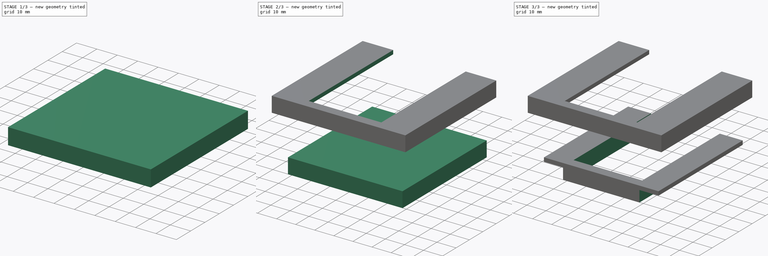
[diagram: build sequence overview — one tinted view per stage of 3, left to right]
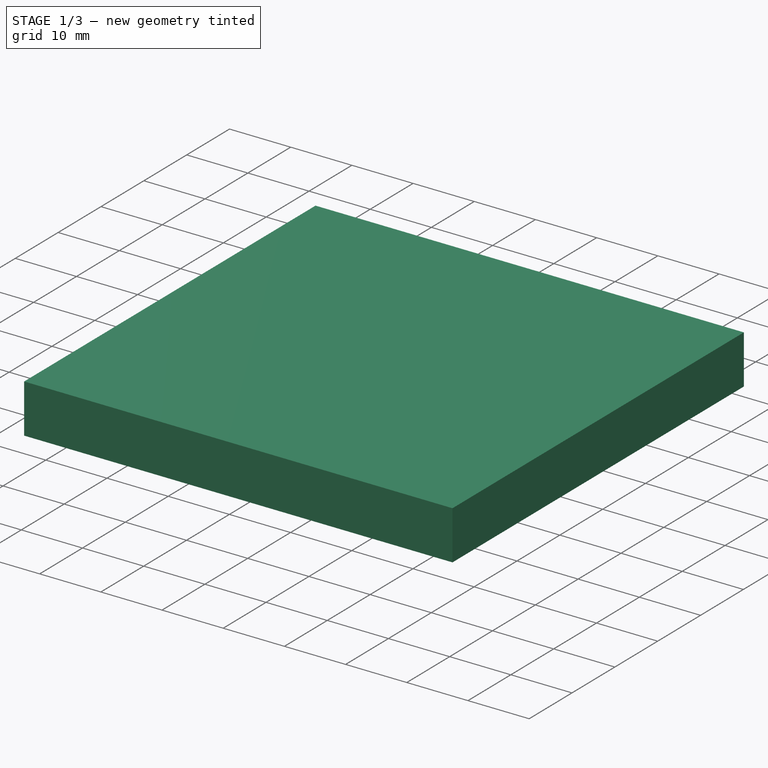
[diagram: stage 1 of 3 — iso view after this stage's code; geometry added in this stage tinted green]
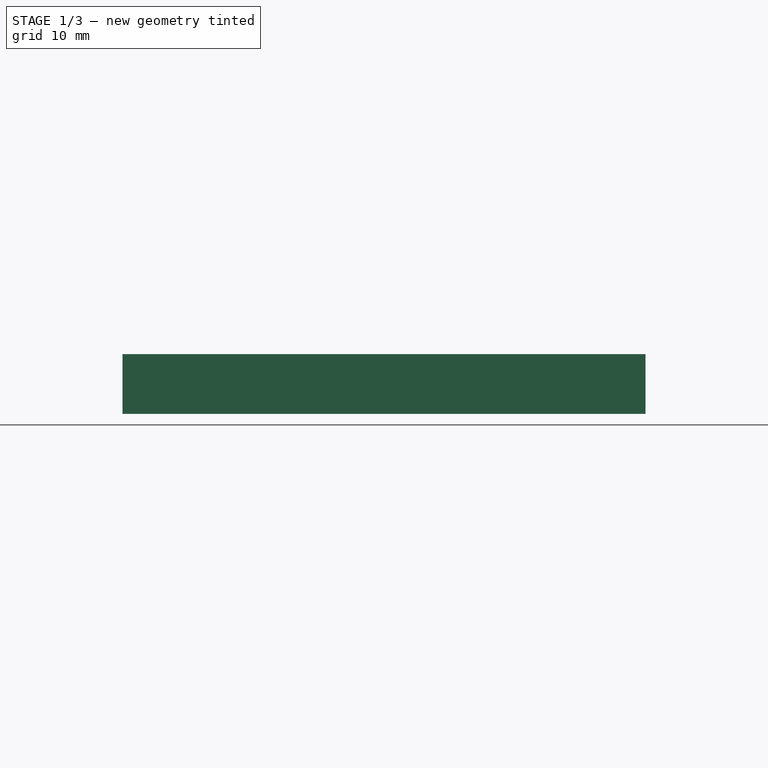
[diagram: stage 1 of 3 — front view after this stage's code; geometry added in this stage tinted green]
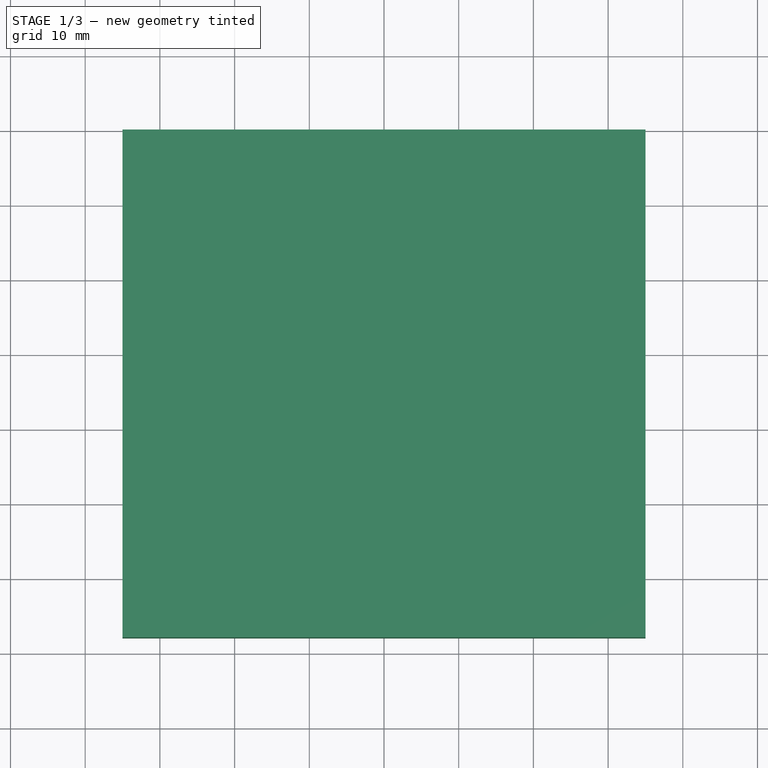
[diagram: stage 1 of 3 — top view after this stage's code; geometry added in this stage tinted green]
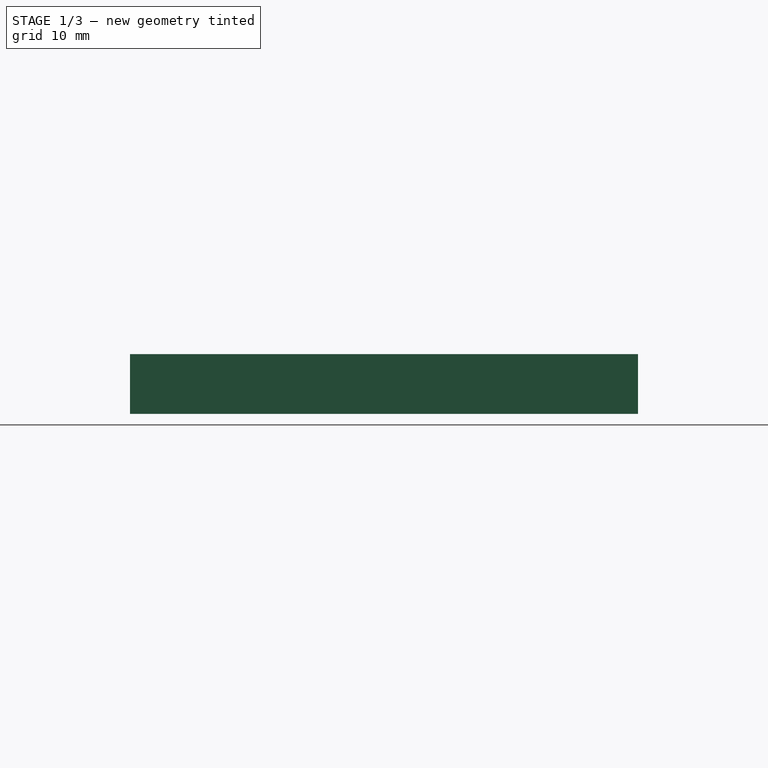
[diagram: stage 1 of 3 — right view after this stage's code; geometry added in this stage tinted green]
FCSTD DOCUMENT  (FreeCAD 0.20R29177 (Git))
Label: Top01
License: All rights reserved
LicenseURL: http://en.wikipedia.org/wiki/All_rights_reserved
objects: Sketcher::SketchObject×6, PartDesign::Pocket×4, PartDesign::Pad×2, PartDesign::Body×2
note: 20 computed .brp shape members not serialized (recipe doc carries the construction recipe); baked Part::Feature solids carry a one-line shape summary decoded from their .brp

FEATURE [PartDesign::Body] Body  label="Below"
  Group = -> [Sketch,Pad,Sketch001,Pocket,Pocket001]
  Origin = -> Origin
  Tip = -> Pocket001
FEATURE [Sketcher::SketchObject] Sketch002  label="MainCover001"
  AttachmentOffset = pos=(0,0,20) rot=(0,0,1;0rad)
  FullyConstrained = false
  MapMode = 5
  Placement = pos=(0,0,20) rot=(0,0,1;0rad)
  Support = -> [XY_Plane001]
  sketch-geometry (4):
    g0: LineSegment StartX=-35 StartY=40.0942 StartZ=0 EndX=35 EndY=40.0942 EndZ=0
    g1: LineSegment StartX=35 StartY=40.0942 StartZ=0 EndX=35 EndY=-27.9058 EndZ=0
    g2: LineSegment StartX=35 StartY=-27.9058 StartZ=0 EndX=-35 EndY=-27.9058 EndZ=0
    g3: LineSegment StartX=-35 StartY=-27.9058 StartZ=0 EndX=-35 EndY=40.0942 EndZ=0
  constraints (10):
    c: Coincident(g0,g1)
    c: Coincident(g1,g2)
    c: Coincident(g2,g3)
    c: Coincident(g3,g0)
    c: Horizontal(g2)
    c: Vertical(g1)
    c: Vertical(g3)
    c: Symmetric(g0,g0,g-2)
    c: DistanceX(g2,g2) = 70
    c: DistanceY(g1,g1) = 68
FEATURE [PartDesign::Pad] Pad001  label="MainCover"
  AllowMultiFace = false
  Direction = (1,1,1)
  Length = 8
  Length2 = 100
  Profile = -> Sketch002
  Type = 0
FEATURE [Sketcher::SketchObject] Sketch003  label="CoverFirst001"
  ExternalGeometry = -> [Pad001]
  FullyConstrained = false
  MapMode = 5
  Placement = pos=(0,0,20) rot=(1,0,0;3.14159rad)
  Support = -> [Pad001]
  sketch-geometry (4):
    g0: LineSegment StartX=-30.075 StartY=23.0558 StartZ=0 EndX=30.075 EndY=23.0558 EndZ=0
    g1: LineSegment StartX=30.075 StartY=23.0558 StartZ=0 EndX=30.075 EndY=-40.0942 EndZ=0
    g2: LineSegment StartX=30.075 StartY=-40.0942 StartZ=0 EndX=-30.075 EndY=-40.0942 EndZ=0
    g3: LineSegment StartX=-30.075 StartY=-40.0942 StartZ=0 EndX=-30.075 EndY=23.0558 EndZ=0
  constraints (11):
    c: Coincident(g0,g1)
    c: Coincident(g1,g2)
    c: Coincident(g2,g3)
    c: Coincident(g3,g0)
    c: Horizontal(g2)
    c: Vertical(g1)
    c: Vertical(g3)
    c: Symmetric(g0,g0,g-2)
    c: DistanceX(g0,g0) = 60.15
    c: PointOnObject(g2,g-3)
    c: DistanceY(g3,g3) = 63.15
FEATURE [PartDesign::Pocket] Pocket002  label="CoverFirst"
  AllowMultiFace = false
  BaseFeature = -> Pad001
  Direction = (1,1,1)
  Length = 6
  Length2 = 100
  Profile = -> Sketch003
  Type = 0
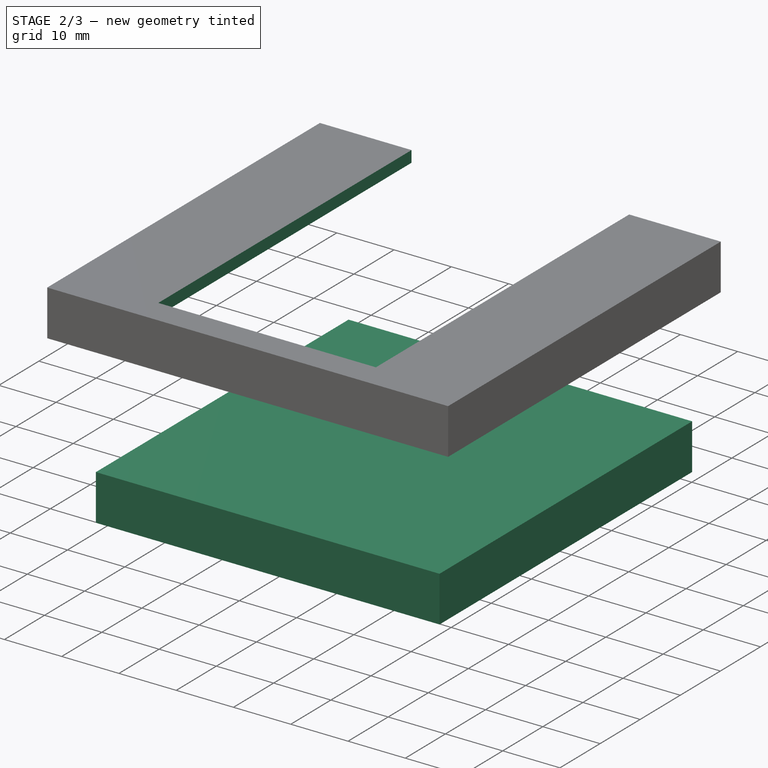
[diagram: stage 2 of 3 — iso view after this stage's code; geometry added in this stage tinted green]
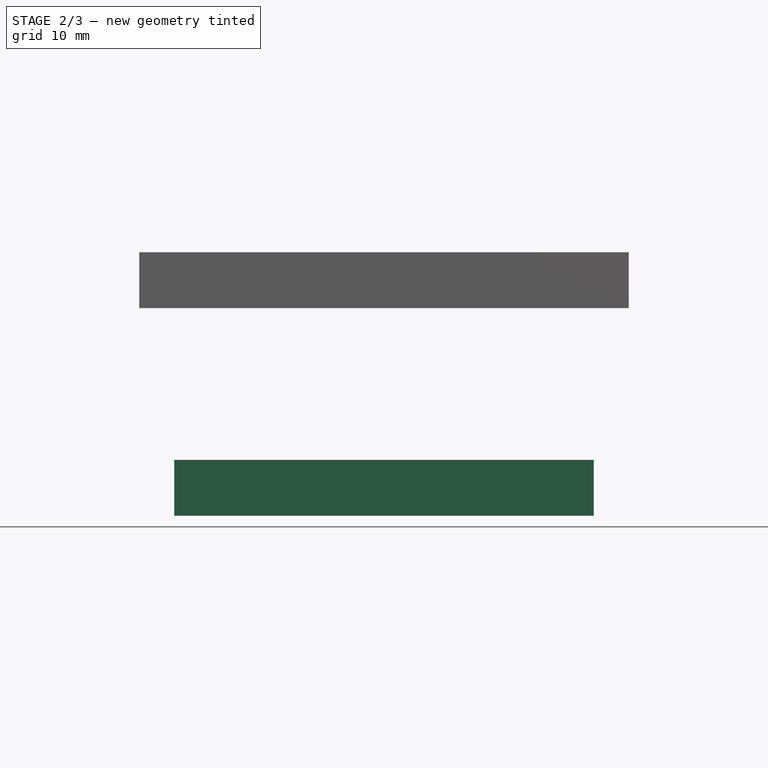
[diagram: stage 2 of 3 — front view after this stage's code; geometry added in this stage tinted green]
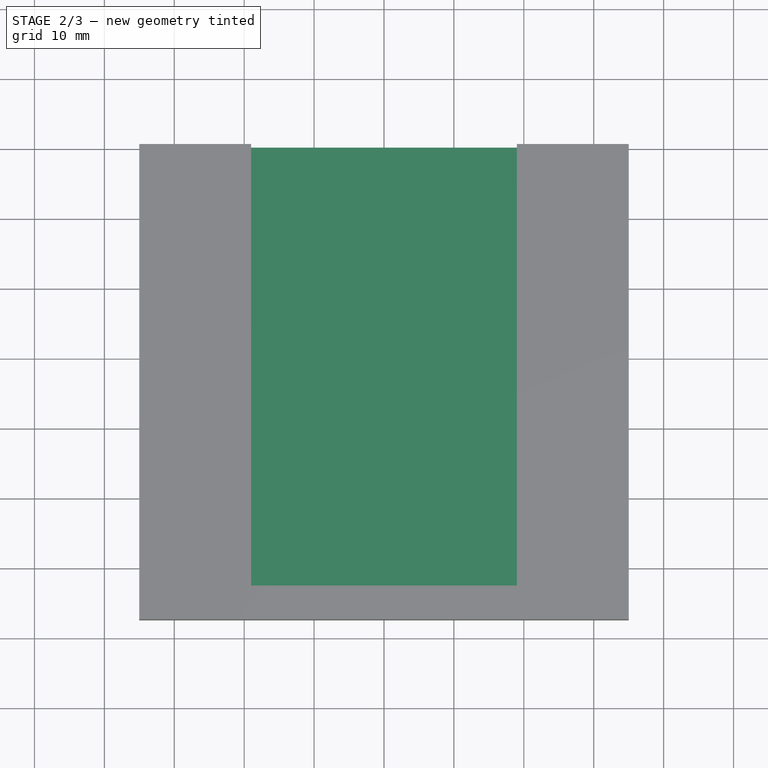
[diagram: stage 2 of 3 — top view after this stage's code; geometry added in this stage tinted green]
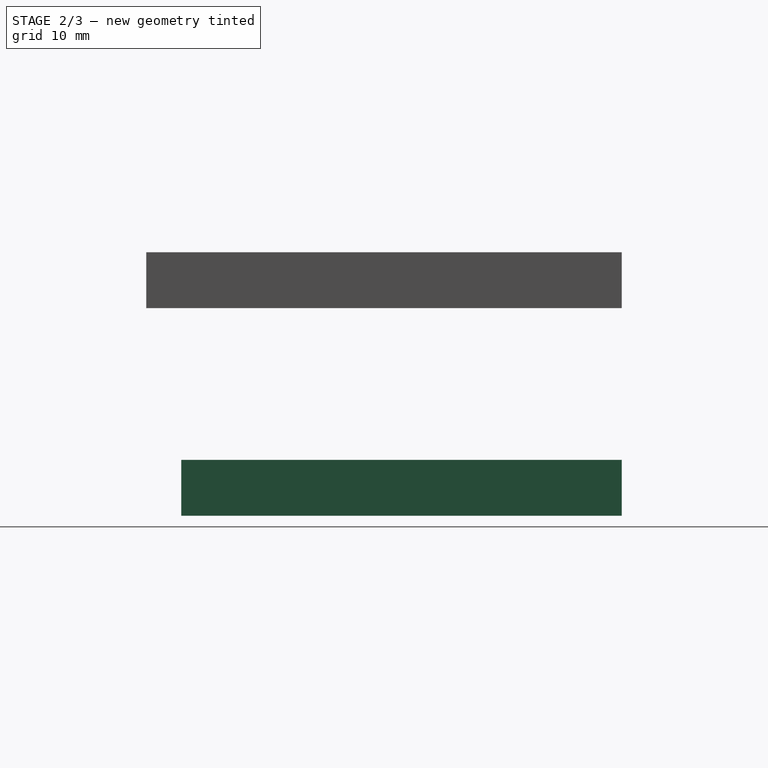
[diagram: stage 2 of 3 — right view after this stage's code; geometry added in this stage tinted green]
FEATURE [Sketcher::SketchObject] Sketch  label="Main001"
  FullyConstrained = false
  MapMode = 7
  Placement = pos=(-4e-15,-22.9058,-6.16703) rot=(0,0.707107,0.707107;3.14159rad)
  sketch-geometry (4):
    g0: LineSegment StartX=-30 StartY=4.46571 StartZ=0 EndX=30 EndY=4.46571 EndZ=0
    g1: LineSegment StartX=30 StartY=4.46571 StartZ=0 EndX=30 EndY=-3.53429 EndZ=0
    g2: LineSegment StartX=30 StartY=-3.53429 StartZ=0 EndX=-30 EndY=-3.53429 EndZ=0
    g3: LineSegment StartX=-30 StartY=-3.53429 StartZ=0 EndX=-30 EndY=4.46571 EndZ=0
  constraints (10):
    c: Coincident(g0,g1)
    c: Coincident(g1,g2)
    c: Coincident(g2,g3)
    c: Coincident(g3,g0)
    c: Horizontal(g2)
    c: Vertical(g1)
    c: Vertical(g3)
    c: DistanceX(g0,g0) = 60
    c: DistanceY(g1,g1) = 8
    c: Symmetric(g0,g0,g-2)
FEATURE [PartDesign::Pad] Pad  label="Main"
  AllowMultiFace = false
  Direction = (1,1,1)
  Length = 63
  Length2 = 100
  Placement = pos=(-4e-15,-22.9058,-6.16703) rot=(0,0.707107,0.707107;3.14159rad)
  Profile = -> Sketch
  Type = 0
FEATURE [Sketcher::SketchObject] Sketch004  label="Hole001"
  ExternalGeometry = -> [Pocket002]
  FullyConstrained = false
  MapMode = 5
  Placement = pos=(0,0,26) rot=(1,0,0;3.14159rad)
  Support = -> [Pocket002]
  sketch-geometry (4):
    g0: LineSegment StartX=-19 StartY=23.0558 StartZ=0 EndX=19 EndY=23.0558 EndZ=0
    g1: LineSegment StartX=19 StartY=23.0558 StartZ=0 EndX=19 EndY=-40.0942 EndZ=0
    g2: LineSegment StartX=19 StartY=-40.0942 StartZ=0 EndX=-19 EndY=-40.0942 EndZ=0
    g3: LineSegment StartX=-19 StartY=-40.0942 StartZ=0 EndX=-19 EndY=23.0558 EndZ=0
  constraints (11):
    c: Coincident(g0,g1)
    c: Coincident(g1,g2)
    c: Coincident(g2,g3)
    c: Coincident(g3,g0)
    c: Horizontal(g2)
    c: Vertical(g1)
    c: Vertical(g3)
    c: Symmetric(g0,g0,g-2)
    c: DistanceX(g0,g0) = 38
    c: PointOnObject(g2,g-3)
    c: DistanceY(g3,g3) = 63.15
FEATURE [PartDesign::Pocket] Pocket003  label="Hole"
  AllowMultiFace = false
  BaseFeature = -> Pocket002
  Direction = (1,1,1)
  Length = 5
  Length2 = 100
  Profile = -> Sketch004
  Type = 1
FEATURE [PartDesign::Body] Body001  label="Cover"
  Group = -> [Sketch002,Pad001,Sketch003,Pocket002,Sketch004,Pocket003]
  Origin = -> Origin001
  Tip = -> Pocket003
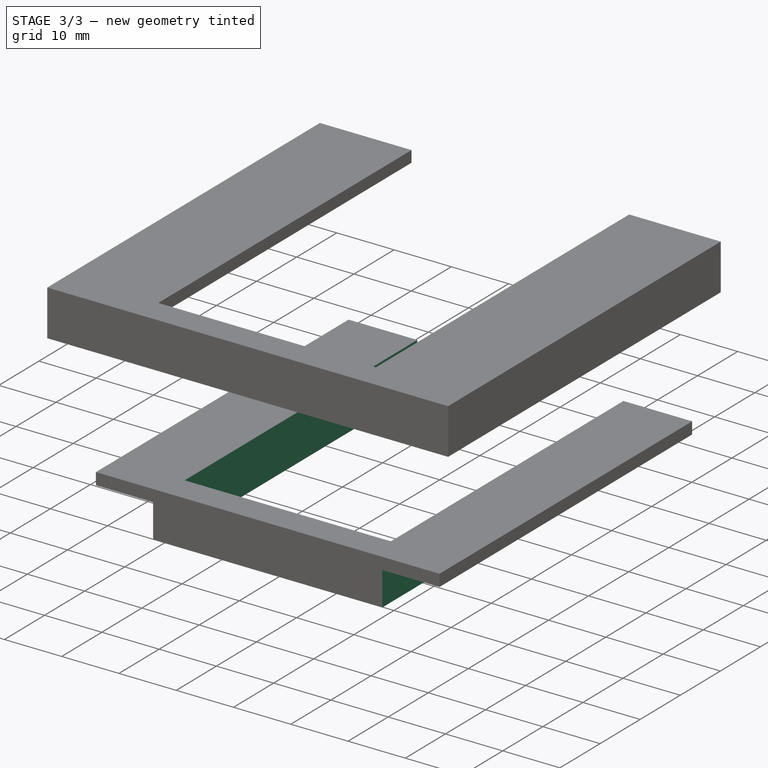
[diagram: stage 3 of 3 — iso view after this stage's code; geometry added in this stage tinted green]
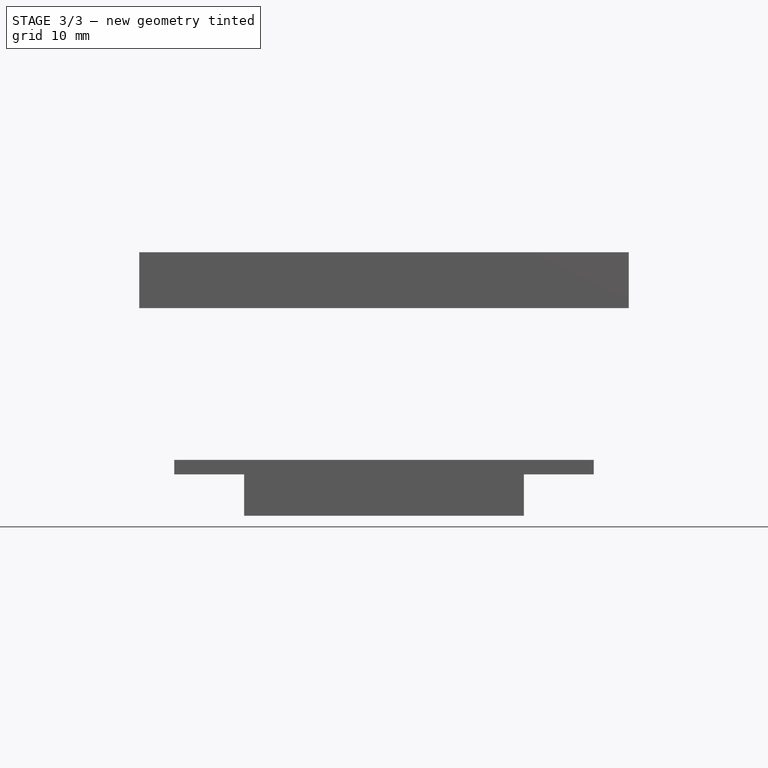
[diagram: stage 3 of 3 — front view after this stage's code; geometry added in this stage tinted green]
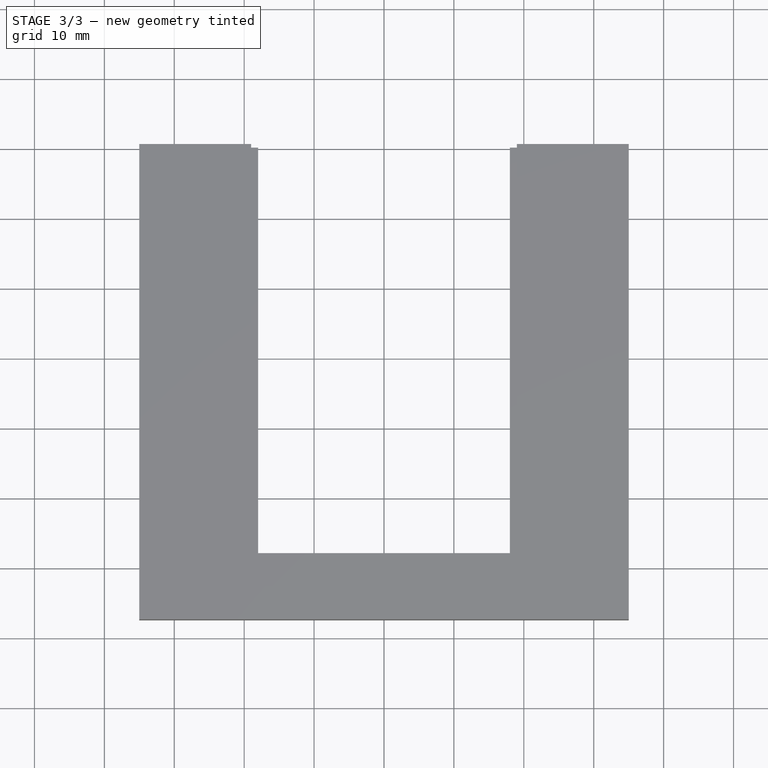
[diagram: stage 3 of 3 — top view after this stage's code; geometry added in this stage tinted green]
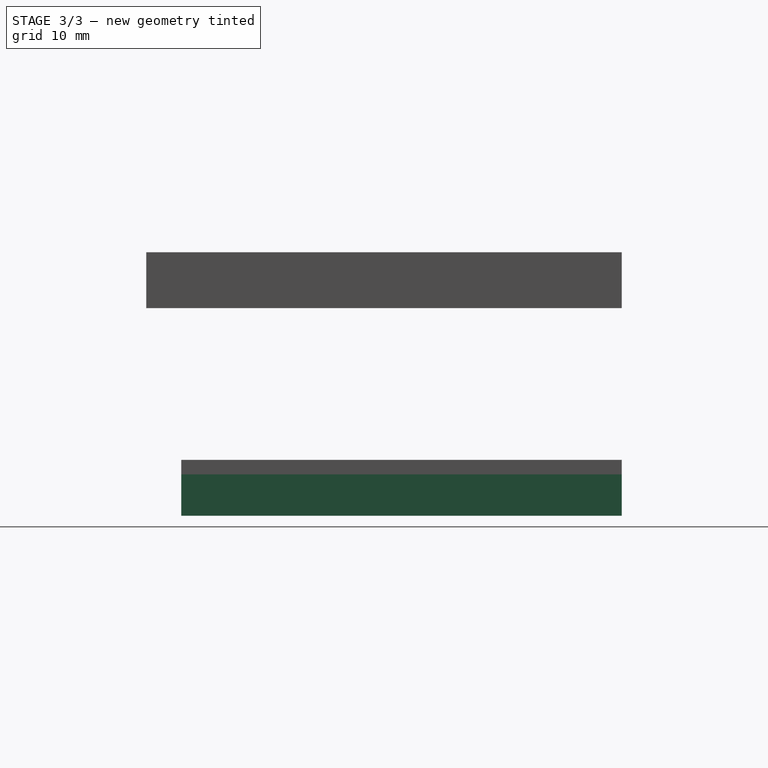
[diagram: stage 3 of 3 — right view after this stage's code; geometry added in this stage tinted green]
FEATURE [Sketcher::SketchObject] Sketch001  label="MainHole001"
  ExternalGeometry = -> [Pad]
  FullyConstrained = false
  MapMode = 5
  Placement = pos=(1.11e-14,40.0942,-6.16703) rot=(0,0.707107,0.707107;3.14159rad)
  Support = -> [Pad]
  sketch-geometry (4):
    g0: LineSegment StartX=-18 StartY=4.46571 StartZ=0 EndX=18 EndY=4.46571 EndZ=0
    g1: LineSegment StartX=18 StartY=4.46571 StartZ=0 EndX=18 EndY=-3.53429 EndZ=0
    g2: LineSegment StartX=18 StartY=-3.53429 StartZ=0 EndX=-18 EndY=-3.53429 EndZ=0
    g3: LineSegment StartX=-18 StartY=-3.53429 StartZ=0 EndX=-18 EndY=4.46571 EndZ=0
  constraints (11):
    c: Coincident(g0,g1)
    c: Coincident(g1,g2)
    c: Coincident(g2,g3)
    c: Coincident(g3,g0)
    c: Horizontal(g2)
    c: Vertical(g1)
    c: Vertical(g3)
    c: PointOnObject(g0,g-3)
    c: PointOnObject(g1,g-4)
    c: Symmetric(g0,g0,g-2)
    c: DistanceX(g0,g0) = 36
FEATURE [PartDesign::Pocket] Pocket  label="MainHole"
  AllowMultiFace = false
  BaseFeature = -> Pad
  Direction = (1,1,1)
  Length = 58
  Length2 = 100
  Placement = pos=(-4e-15,-22.9058,-6.16703) rot=(0,0.707107,0.707107;3.14159rad)
  Profile = -> Sketch001
  Type = 0
FEATURE [Sketcher::SketchObject] CopySketch002  label="SupportHole001"
  FullyConstrained = false
  Placement = pos=(1.4e-14,40.0942,-6.16703) rot=(0,0.707107,0.707107;3.14159rad)
  sketch-geometry (8):
    g0: LineSegment StartX=-30 StartY=2.38493 StartZ=0 EndX=-20 EndY=2.38493 EndZ=0
    g1: LineSegment StartX=-20 StartY=2.38493 StartZ=0 EndX=-20 EndY=-4.61507 EndZ=0
    g2: LineSegment StartX=-20 StartY=-4.61507 StartZ=0 EndX=-30 EndY=-4.61507 EndZ=0
    g3: LineSegment StartX=-30 StartY=-4.61507 StartZ=0 EndX=-30 EndY=2.38493 EndZ=0
    g4: LineSegment StartX=20 StartY=2.38493 StartZ=0 EndX=30 EndY=2.38493 EndZ=0
    g5: LineSegment StartX=30 StartY=2.38493 StartZ=0 EndX=30 EndY=-4.61507 EndZ=0
    g6: LineSegment StartX=30 StartY=-4.61507 StartZ=0 EndX=20 EndY=-4.61507 EndZ=0
    g7: LineSegment StartX=20 StartY=-4.61507 StartZ=0 EndX=20 EndY=2.38493 EndZ=0
  constraints (20):
    c: Coincident(g0,g1)
    c: Coincident(g1,g2)
    c: Coincident(g2,g3)
    c: Coincident(g3,g0)
    c: Horizontal(g0)
    c: Horizontal(g2)
    c: Vertical(g1)
    c: Vertical(g3)
    c: Coincident(g4,g5)
    c: Coincident(g5,g6)
    c: Coincident(g6,g7)
    c: Coincident(g7,g4)
    c: Horizontal(g4)
    c: Horizontal(g6)
    c: Vertical(g5)
    c: Vertical(g7)
    c: DistanceX(g0,g0) = 10
    c: DistanceX(g4,g4) = 10
    c: DistanceY(g3,g3) = 7
    c: DistanceY(g5,g5) = 7
FEATURE [PartDesign::Pocket] Pocket001  label="SupportHole"
  AllowMultiFace = false
  BaseFeature = -> Pocket
  Direction = (1,1,1)
  Length = 63
  Length2 = 100
  Placement = pos=(-4e-15,-22.9058,-6.16703) rot=(0,0.707107,0.707107;3.14159rad)
  Profile = -> CopySketch002
  Type = 0
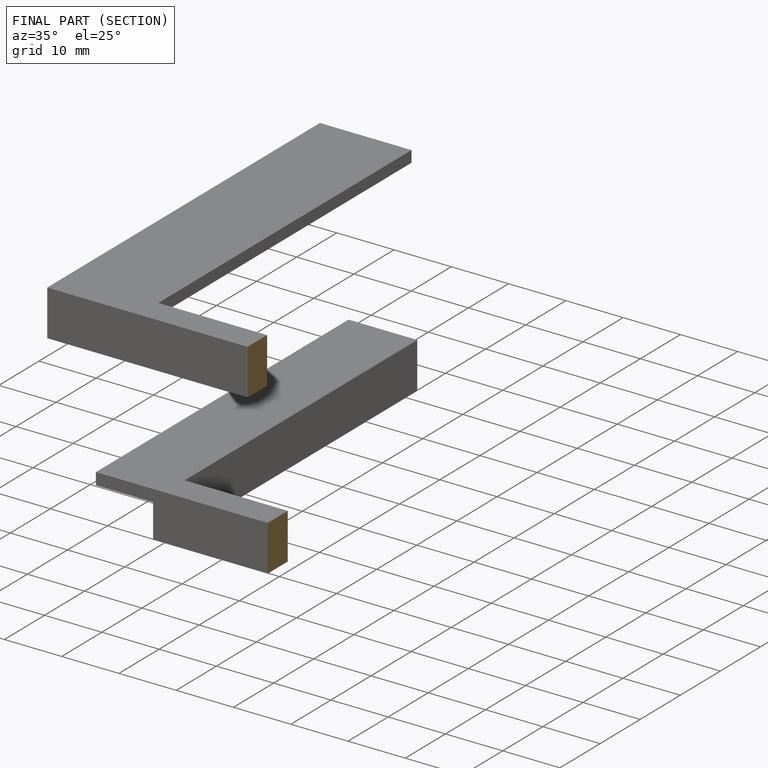
[diagram: finished part — half-section view (interior)]
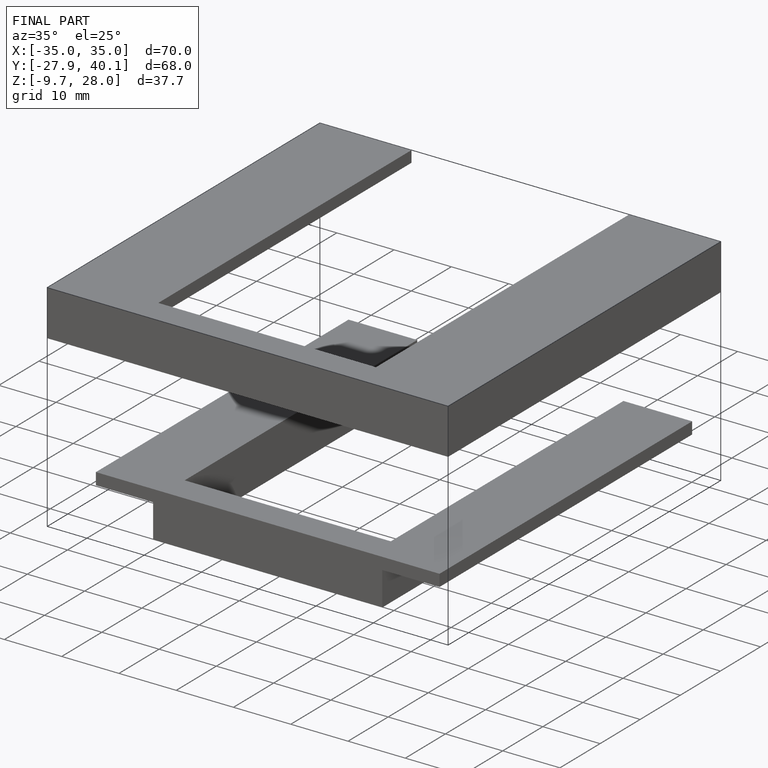
[diagram: finished part — iso view with bounding-box wireframe]
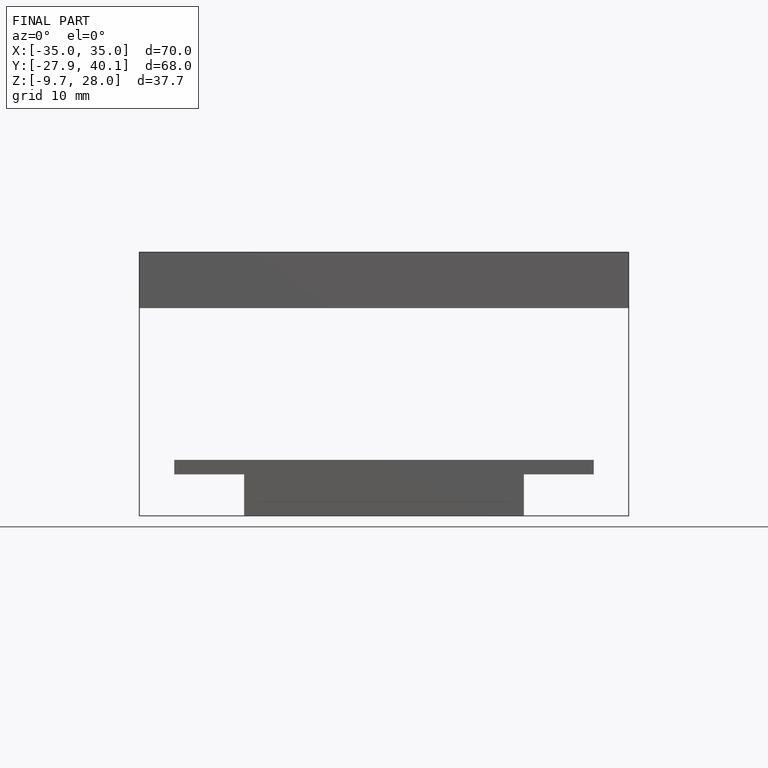
[diagram: finished part — front view with bounding-box wireframe]
